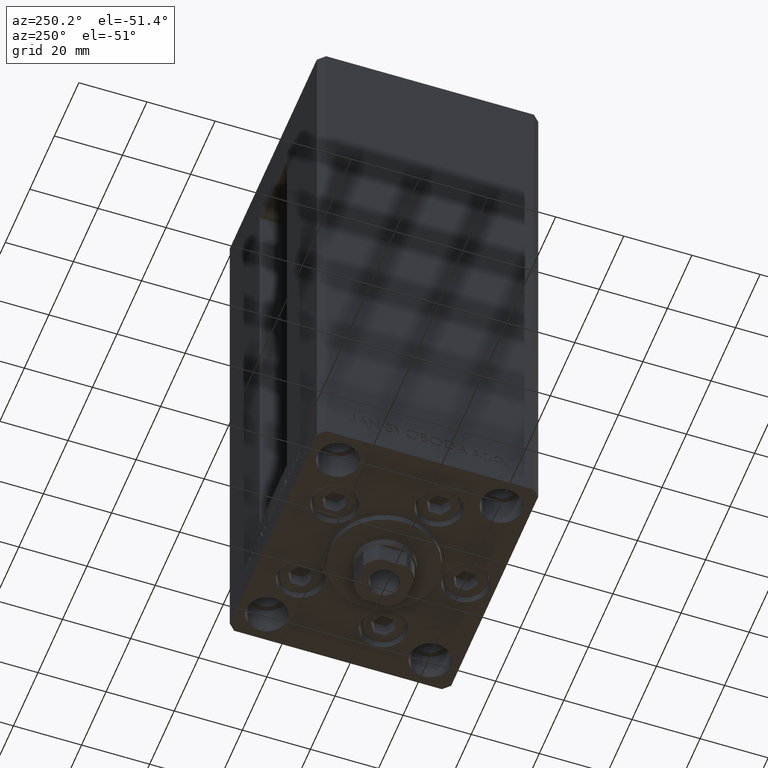
[diagram: clean part render]
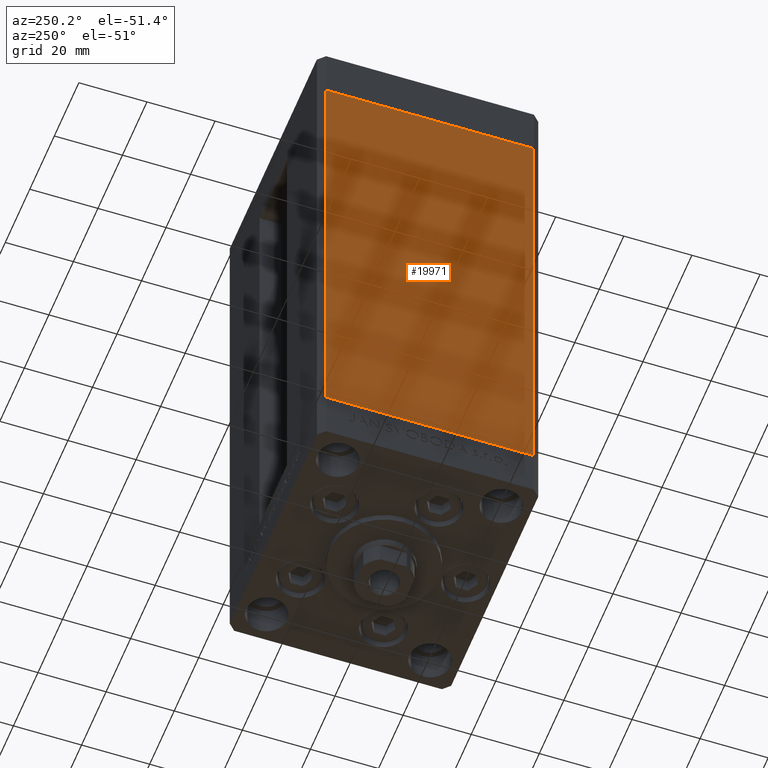
[diagram: same view with one face highlighted and labeled with its STEP entity id]
A machine part, auxiliary view. The second image highlights one B-rep face of the part: STEP entity #19971.
In plain terms, the highlighted planar face has unit normal (1, 0, 0).
Its self-contained STEP definition (entity closure, byte-faithful):
#1176 = EDGE_CURVE ( 'NONE', #10552, #1762, #27663, .T. ) ;
#1696 = CARTESIAN_POINT ( 'NONE',  ( -37.50000000000000711, 30.50000000000000000, 136.0000000000000000 ) ) ;
#1762 = VERTEX_POINT ( 'NONE', #10260 ) ;
#3628 = LINE ( 'NONE', #22429, #4377 ) ;
#4377 = VECTOR ( 'NONE', #30348, 1000.000000000000000 ) ;
#4667 = DIRECTION ( 'NONE',  ( 1.000000000000000000, 2.275047181608927644E-16, -0.000000000000000000 ) ) ;
#5867 = CARTESIAN_POINT ( 'NONE',  ( -37.50000000000000711, 30.50000000000000000, 136.0000000000000000 ) ) ;
#8258 = VERTEX_POINT ( 'NONE', #22756 ) ;
#8446 = CARTESIAN_POINT ( 'NONE',  ( -37.49999999999999289, -30.50000000000000000, 136.0000000000000000 ) ) ;
#8855 = PLANE ( 'NONE',  #21578 ) ;
#10260 = CARTESIAN_POINT ( 'NONE',  ( -37.50000000000000711, 30.50000000000000000, 0.000000000000000000 ) ) ;
#10552 = VERTEX_POINT ( 'NONE', #1696 ) ;
#13287 = DIRECTION ( 'NONE',  ( -0.000000000000000000, -0.000000000000000000, -1.000000000000000000 ) ) ;
#19036 = ORIENTED_EDGE ( 'NONE', *, *, #1176, .T. ) ;
#19049 = ORIENTED_EDGE ( 'NONE', *, *, #26385, .F. ) ;
#19531 = EDGE_CURVE ( 'NONE', #8258, #40556, #27022, .T. ) ;
#19835 = VECTOR ( 'NONE', #13287, 1000.000000000000000 ) ;
#19971 = ADVANCED_FACE ( 'NONE', ( #27668 ), #8855, .F. ) ;
#21578 = AXIS2_PLACEMENT_3D ( 'NONE', #30426, #4667, #34868 ) ;
#22011 = ORIENTED_EDGE ( 'NONE', *, *, #19531, .F. ) ;
#22429 = CARTESIAN_POINT ( 'NONE',  ( -37.50000000000000711, 30.50000000000000000, 136.0000000000000000 ) ) ;
#22593 = CARTESIAN_POINT ( 'NONE',  ( -37.50000000000000711, 30.50000000000000000, 0.000000000000000000 ) ) ;
#22756 = CARTESIAN_POINT ( 'NONE',  ( -37.49999999999999289, -30.50000000000000000, 136.0000000000000000 ) ) ;
#26194 = VECTOR ( 'NONE', #33975, 1000.000000000000000 ) ;
#26385 = EDGE_CURVE ( 'NONE', #10552, #8258, #3628, .T. ) ;
#27022 = LINE ( 'NONE', #8446, #36558 ) ;
#27663 = LINE ( 'NONE', #5867, #19835 ) ;
#27668 = FACE_OUTER_BOUND ( 'NONE', #43305, .T. ) ;
#30348 = DIRECTION ( 'NONE',  ( 2.275047181608927644E-16, -1.000000000000000000, 0.000000000000000000 ) ) ;
#30426 = CARTESIAN_POINT ( 'NONE',  ( -37.50000000000000711, 30.50000000000000000, 136.0000000000000000 ) ) ;
#31232 = ORIENTED_EDGE ( 'NONE', *, *, #35459, .T. ) ;
#33286 = CARTESIAN_POINT ( 'NONE',  ( -37.49999999999999289, -30.50000000000000000, 0.000000000000000000 ) ) ;
#33975 = DIRECTION ( 'NONE',  ( 2.275047181608927644E-16, -1.000000000000000000, 0.000000000000000000 ) ) ;
#34868 = DIRECTION ( 'NONE',  ( -2.275047181608927644E-16, 1.000000000000000000, 0.000000000000000000 ) ) ;
#35459 = EDGE_CURVE ( 'NONE', #1762, #40556, #41405, .T. ) ;
#36558 = VECTOR ( 'NONE', #42825, 1000.000000000000000 ) ;
#40556 = VERTEX_POINT ( 'NONE', #33286 ) ;
#41405 = LINE ( 'NONE', #22593, #26194 ) ;
#42825 = DIRECTION ( 'NONE',  ( -0.000000000000000000, -0.000000000000000000, -1.000000000000000000 ) ) ;
#43305 = EDGE_LOOP ( 'NONE', ( #31232, #22011, #19049, #19036 ) ) ;